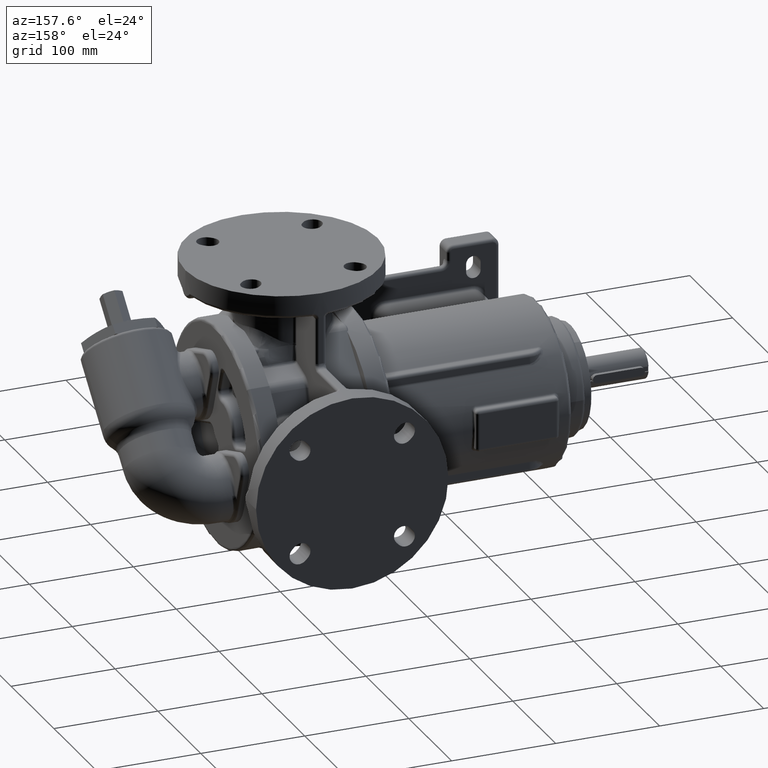
[diagram: clean part render]
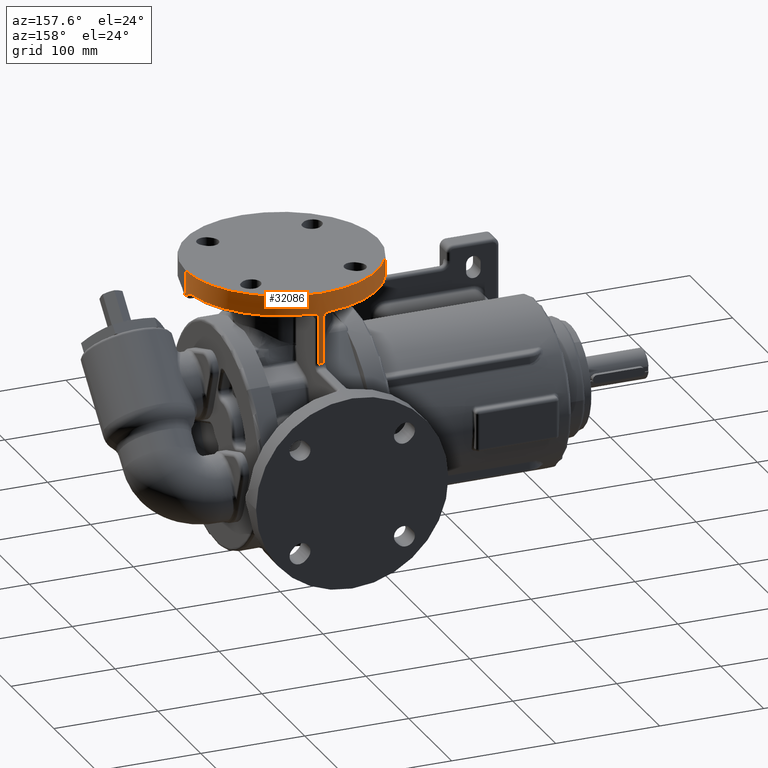
[diagram: same view with one face highlighted and labeled with its STEP entity id]
A machine part, auxiliary view. The second image highlights one B-rep face of the part: STEP entity #32086.
In plain terms, the highlighted cylindrical surface (partial cylindrical patch) has radius 92.5 mm, axis along (0, 0, 1).
Its self-contained STEP definition (entity closure, byte-faithful):
#2316=CARTESIAN_POINT('',(5.75E1,-7.402651506505E-14,1.65E2));
#2317=DIRECTION('',(0.E0,0.E0,1.E0));
#2318=DIRECTION('',(1.E0,-1.471074845106E-13,0.E0));
#2319=AXIS2_PLACEMENT_3D('',#2316,#2317,#2318);
#2321=CARTESIAN_POINT('',(5.75E1,-7.402651506505E-14,1.46E2));
#2322=DIRECTION('',(0.E0,0.E0,-1.E0));
#2323=DIRECTION('',(-1.E0,0.E0,0.E0));
#2324=AXIS2_PLACEMENT_3D('',#2321,#2322,#2323);
#2326=CARTESIAN_POINT('',(4.923184357542E1,9.212973238504E1,1.46E2));
#2327=CARTESIAN_POINT('',(4.932138539686E1,9.213776823080E1,1.459999997025E2));
#2328=CARTESIAN_POINT('',(4.950031213433E1,9.215356307626E1,1.459962484502E2));
#2329=CARTESIAN_POINT('',(4.976852970746E1,9.217645275953E1,1.459793732366E2));
#2330=CARTESIAN_POINT('',(5.003566993685E1,9.219846848584E1,1.459512698182E2));
#2331=CARTESIAN_POINT('',(5.030119568717E1,9.221957861612E1,1.459120181816E2));
#2332=CARTESIAN_POINT('',(5.056449621629E1,9.223975173901E1,1.458617230832E2));
#2333=CARTESIAN_POINT('',(5.082507543342E1,9.225897174585E1,1.458005188546E2));
#2334=CARTESIAN_POINT('',(5.108242815160E1,9.227722713870E1,1.457285448648E2));
#2335=CARTESIAN_POINT('',(5.133605484974E1,9.229451215404E1,1.456459866165E2));
#2336=CARTESIAN_POINT('',(5.158546580233E1,9.231082671202E1,1.455530351228E2));
#2337=CARTESIAN_POINT('',(5.183019868581E1,9.232617714042E1,1.454499166960E2));
#2338=CARTESIAN_POINT('',(5.206979758738E1,9.234057434134E1,1.453368614108E2));
#2339=CARTESIAN_POINT('',(5.230382844795E1,9.235403433737E1,1.452141348103E2));
#2340=CARTESIAN_POINT('',(5.253186689671E1,9.236657707816E1,1.450820049210E2));
#2341=CARTESIAN_POINT('',(5.275351377099E1,9.237822684803E1,1.449407697407E2));
#2342=CARTESIAN_POINT('',(5.296838018632E1,9.238901095317E1,1.447907297583E2));
#2343=CARTESIAN_POINT('',(5.317610211315E1,9.239896000726E1,1.446322110682E2));
#2344=CARTESIAN_POINT('',(5.337632805275E1,9.240810681532E1,1.444655423778E2));
#2345=CARTESIAN_POINT('',(5.356873064466E1,9.241648645442E1,1.442910723469E2));
#2346=CARTESIAN_POINT('',(5.375299764113E1,9.242413537163E1,1.441091529337E2));
#2347=CARTESIAN_POINT('',(5.392883873168E1,9.243109122900E1,1.439201501405E2));
#2348=CARTESIAN_POINT('',(5.409598156717E1,9.243739227451E1,1.437244343409E2));
#2349=CARTESIAN_POINT('',(5.425417208070E1,9.244307693973E1,1.435223846461E2));
#2350=CARTESIAN_POINT('',(5.440317791258E1,9.244818354271E1,1.433143848256E2));
#2351=CARTESIAN_POINT('',(5.454278070919E1,9.245274963659E1,1.431008221295E2));
#2352=CARTESIAN_POINT('',(5.467278651854E1,9.245681199214E1,1.428820900457E2));
#2353=CARTESIAN_POINT('',(5.479301027198E1,9.246040576770E1,1.426585820884E2));
#2354=CARTESIAN_POINT('',(5.490329473015E1,9.246356478240E1,1.424306978979E2));
#2355=CARTESIAN_POINT('',(5.500348649119E1,9.246632052642E1,1.421988348604E2));
#2356=CARTESIAN_POINT('',(5.509346628147E1,9.246870275922E1,1.419633883712E2));
#2357=CARTESIAN_POINT('',(5.517311320156E1,9.247073829265E1,1.417247474022E2));
#2358=CARTESIAN_POINT('',(5.524232603600E1,9.247245139220E1,1.414833435438E2));
#2359=CARTESIAN_POINT('',(5.530100745652E1,9.247386320870E1,1.412396040785E2));
#2360=CARTESIAN_POINT('',(5.534911667178E1,9.247499286586E1,1.409938666372E2));
#2361=CARTESIAN_POINT('',(5.538658850812E1,9.247585539032E1,1.407464714318E2));
#2362=CARTESIAN_POINT('',(5.541336304578E1,9.247646236428E1,1.404979861745E2));
#2363=CARTESIAN_POINT('',(5.542940378738E1,9.247682232711E1,1.402488953063E2));
#2364=CARTESIAN_POINT('',(5.543296057467E1,9.247690164487E1,1.400829722517E2));
#2365=CARTESIAN_POINT('',(5.543296089385E1,9.247690170704E1,1.4E2));
#2367=DIRECTION('',(-1.060336186665E-10,-1.449377073851E-8,-1.E0));
#2368=VECTOR('',#2367,4.352409886002E1);
#2369=CARTESIAN_POINT('',(5.543296089385E1,9.247690170704E1,1.4E2));
#2370=LINE('',#2369,#2368);
#2371=CARTESIAN_POINT('',(5.956703724102E1,9.247690153778E1,9.647590232446E1));
#2372=CARTESIAN_POINT('',(5.910779427093E1,9.248716622792E1,9.648661041011E1));
#2373=CARTESIAN_POINT('',(5.818914020849E1,9.250085554834E1,9.650089000578E1));
#2374=CARTESIAN_POINT('',(5.681085926177E1,9.250085563556E1,9.650089366936E1));
#2375=CARTESIAN_POINT('',(5.589220411740E1,9.248716605871E1,9.648661001936E1));
#2376=CARTESIAN_POINT('',(5.543296088924E1,9.247690107621E1,9.647590113998E1));
#2378=DIRECTION('',(4.285267875963E-8,3.888827711881E-9,1.E0));
#2379=VECTOR('',#2378,4.352409767554E1);
#2380=CARTESIAN_POINT('',(5.956703724102E1,9.247690153778E1,9.647590232446E1));
#2381=LINE('',#2380,#2379);
#2382=CARTESIAN_POINT('',(5.956703910615E1,9.247690170704E1,1.4E2));
#2383=CARTESIAN_POINT('',(5.956703937906E1,9.247690165878E1,1.400830060724E2));
#2384=CARTESIAN_POINT('',(5.957059867948E1,9.247682226617E1,1.402489872252E2));
#2385=CARTESIAN_POINT('',(5.958664920240E1,9.247646209032E1,1.404981358528E2));
#2386=CARTESIAN_POINT('',(5.961343431078E1,9.247585486964E1,1.407466517579E2));
#2387=CARTESIAN_POINT('',(5.965091547055E1,9.247499211941E1,1.409940486238E2));
#2388=CARTESIAN_POINT('',(5.969903115508E1,9.247386229228E1,1.412397836260E2));
#2389=CARTESIAN_POINT('',(5.975772464346E1,9.247245015761E1,1.414835352049E2));
#2390=CARTESIAN_POINT('',(5.982694738615E1,9.247073677046E1,1.417249438648E2));
#2391=CARTESIAN_POINT('',(5.990660231442E1,9.246870097588E1,1.419635781536E2));
#2392=CARTESIAN_POINT('',(5.999658824098E1,9.246631851149E1,1.421990202196E2));
#2393=CARTESIAN_POINT('',(6.009678946039E1,9.246356242103E1,1.424308800465E2));
#2394=CARTESIAN_POINT('',(6.020708051792E1,9.246040311282E1,1.426587613922E2));
#2395=CARTESIAN_POINT('',(6.032731293420E1,9.245680895406E1,1.428822641717E2));
#2396=CARTESIAN_POINT('',(6.045732414139E1,9.245274628600E1,1.431009916828E2));
#2397=CARTESIAN_POINT('',(6.059693477187E1,9.244817977125E1,1.433145479519E2));
#2398=CARTESIAN_POINT('',(6.074594555584E1,9.244307281269E1,1.435225429554E2));
#2399=CARTESIAN_POINT('',(6.090414341851E1,9.243738767527E1,1.437245859169E2));
#2400=CARTESIAN_POINT('',(6.107129067595E1,9.243108623250E1,1.439202964171E2));
#2401=CARTESIAN_POINT('',(6.124713829709E1,9.242412986387E1,1.441092919337E2));
#2402=CARTESIAN_POINT('',(6.143140932663E1,9.241648050346E1,1.442912057182E2));
#2403=CARTESIAN_POINT('',(6.162381774892E1,9.240810031231E1,1.444656682627E2));
#2404=CARTESIAN_POINT('',(6.182404740223E1,9.239895301364E1,1.446323309931E2));
#2405=CARTESIAN_POINT('',(6.203177445672E1,9.238900337126E1,1.447908420973E2));
#2406=CARTESIAN_POINT('',(6.224664433917E1,9.237821872712E1,1.449408758060E2));
#2407=CARTESIAN_POINT('',(6.246829565463E1,9.236656833800E1,1.450821033236E2));
#2408=CARTESIAN_POINT('',(6.269633712980E1,9.235402502382E1,1.452142265082E2));
#2409=CARTESIAN_POINT('',(6.293037118426E1,9.234056441854E1,1.453369451908E2));
#2410=CARTESIAN_POINT('',(6.316997173957E1,9.232616667559E1,1.454499929341E2));
#2411=CARTESIAN_POINT('',(6.341470604565E1,9.231081570231E1,1.455531031235E2));
#2412=CARTESIAN_POINT('',(6.366411837596E1,9.229450058700E1,1.456460471265E2));
#2413=CARTESIAN_POINT('',(6.391774763708E1,9.227721491450E1,1.457285981402E2));
#2414=CARTESIAN_POINT('',(6.417509885126E1,9.225895913126E1,1.458005633698E2));
#2415=CARTESIAN_POINT('',(6.443567027399E1,9.223973921267E1,1.458617583338E2));
#2416=CARTESIAN_POINT('',(6.469896289718E1,9.221956622814E1,1.459120450605E2));
#2417=CARTESIAN_POINT('',(6.496447543444E1,9.219845669759E1,1.459512877447E2));
#2418=CARTESIAN_POINT('',(6.523158634890E1,9.217644298579E1,1.459793823600E2));
#2419=CARTESIAN_POINT('',(6.549975682582E1,9.215355704239E1,1.459962502293E2));
#2420=CARTESIAN_POINT('',(6.567863963630E1,9.213776596786E1,1.459999996597E2));
#2421=CARTESIAN_POINT('',(6.576815642458E1,9.212973238504E1,1.46E2));
#2423=CARTESIAN_POINT('',(5.75E1,-7.402651506505E-14,1.46E2));
#2424=DIRECTION('',(0.E0,0.E0,-1.E0));
#2425=DIRECTION('',(8.938547486033E-2,9.959971068653E-1,0.E0));
#2426=AXIS2_PLACEMENT_3D('',#2423,#2424,#2425);
#2428=CARTESIAN_POINT('',(1.492754306265E2,1.155509988373E1,1.46E2));
#2429=CARTESIAN_POINT('',(1.492864854623E2,1.146729726061E1,1.459999997073E2));
#2430=CARTESIAN_POINT('',(1.493083192898E2,1.129185292324E1,1.459963926256E2));
#2431=CARTESIAN_POINT('',(1.493402793812E2,1.102888907717E1,1.45980171E2));
#2432=CARTESIAN_POINT('',(1.493713515180E2,1.076697851482E1,1.459531615571E2));
#2433=CARTESIAN_POINT('',(1.494014880731E2,1.050662685079E1,1.459154430478E2));
#2434=CARTESIAN_POINT('',(1.494306385047E2,1.024841405190E1,1.458671172162E2));
#2435=CARTESIAN_POINT('',(1.494587706264E2,9.992811787857E0,1.458083156707E2));
#2436=CARTESIAN_POINT('',(1.494858569373E2,9.740294035670E0,1.457391720829E2));
#2437=CARTESIAN_POINT('',(1.495118755161E2,9.491328734818E0,1.456598635598E2));
#2438=CARTESIAN_POINT('',(1.495368097463E2,9.246377630628E0,1.455705714985E2));
#2439=CARTESIAN_POINT('',(1.495606502186E2,9.005873838665E0,1.454715113672E2));
#2440=CARTESIAN_POINT('',(1.495833919235E2,8.770245124146E0,1.453628987180E2));
#2441=CARTESIAN_POINT('',(1.496050358805E2,8.539893217986E0,1.452449833978E2));
#2442=CARTESIAN_POINT('',(1.496255865753E2,8.315215856191E0,1.451180130363E2));
#2443=CARTESIAN_POINT('',(1.496450521951E2,8.096600905996E0,1.449822780276E2));
#2444=CARTESIAN_POINT('',(1.496634443393E2,7.884425833024E0,1.448380650079E2));
#2445=CARTESIAN_POINT('',(1.496807827351E2,7.678996161180E0,1.446856638233E2));
#2446=CARTESIAN_POINT('',(1.496970875363E2,7.480626034859E0,1.445253546288E2));
#2447=CARTESIAN_POINT('',(1.497123736066E2,7.289711322292E0,1.443575432634E2));
#2448=CARTESIAN_POINT('',(1.497266625862E2,7.106578399492E0,1.441825853670E2));
#2449=CARTESIAN_POINT('',(1.497355303799E2,6.990006136189E0,1.440616013975E2));
#2450=CARTESIAN_POINT('',(1.497398107110E2,6.933059930235E0,1.44E2));
#2452=CARTESIAN_POINT('',(1.497398107110E2,6.933059930235E0,1.44E2));
#2453=CARTESIAN_POINT('',(1.497457824039E2,6.853610358391E0,1.439140540076E2));
#2454=CARTESIAN_POINT('',(1.497577802806E2,6.691243333472E0,1.437450545910E2));
#2455=CARTESIAN_POINT('',(1.497758772096E2,6.437003487723E0,1.435000492740E2));
#2456=CARTESIAN_POINT('',(1.497939443197E2,6.172690164643E0,1.432642972884E2));
#2457=CARTESIAN_POINT('',(1.498118695338E2,5.898705607159E0,1.430382375679E2));
#2458=CARTESIAN_POINT('',(1.498295383403E2,5.615517063078E0,1.428223371336E2));
#2459=CARTESIAN_POINT('',(1.498468450251E2,5.323492635681E0,1.426169392854E2));
#2460=CARTESIAN_POINT('',(1.498636831780E2,5.023049245574E0,1.424224103343E2));
#2461=CARTESIAN_POINT('',(1.498799467080E2,4.714659926689E0,1.422391157695E2));
#2462=CARTESIAN_POINT('',(1.498955336902E2,4.398800032675E0,1.420673897905E2));
#2463=CARTESIAN_POINT('',(1.499103465634E2,4.075951241688E0,1.419075448049E2));
#2464=CARTESIAN_POINT('',(1.499242920664E2,3.746615360119E0,1.417598678930E2));
#2465=CARTESIAN_POINT('',(1.499372822645E2,3.411305667917E0,1.416246329646E2));
#2466=CARTESIAN_POINT('',(1.499492349243E2,3.070551793423E0,1.415020807298E2));
#2467=CARTESIAN_POINT('',(1.499600743629E2,2.724891672497E0,1.413924411647E2));
#2468=CARTESIAN_POINT('',(1.499697317886E2,2.374875363730E0,1.412959069820E2));
#2469=CARTESIAN_POINT('',(1.499781459276E2,2.021058825924E0,1.412126598340E2));
#2470=CARTESIAN_POINT('',(1.499852632977E2,1.664007760915E0,1.411428452213E2));
#2471=CARTESIAN_POINT('',(1.499910386787E2,1.304292199762E0,1.410865939197E2));
#2472=CARTESIAN_POINT('',(1.499954353489E2,9.424880278563E-1,1.410440046662E2));
#2473=CARTESIAN_POINT('',(1.499984253589E2,5.791741337508E-1,1.410151556336E2));
#2474=CARTESIAN_POINT('',(1.499999896948E2,2.149325712109E-1,1.410000992257E2));
#2475=CARTESIAN_POINT('',(1.500001184109E2,-1.496533842361E-1,
1.409988604990E2));
#2476=CARTESIAN_POINT('',(1.499988106879E2,-5.139996175452E-1,
1.410114453226E2));
#2477=CARTESIAN_POINT('',(1.499960748394E2,-8.775225959084E-1,
1.410378260536E2));
#2478=CARTESIAN_POINT('',(1.499919282682E2,-1.239639547676E0,1.410779611204E2));
#2479=CARTESIAN_POINT('',(1.499863973301E2,-1.599771527087E0,1.411317714698E2));
#2480=CARTESIAN_POINT('',(1.499795171867E2,-1.957342087963E0,1.411991668023E2));
#2481=CARTESIAN_POINT('',(1.499713315684E2,-2.311779480064E0,1.412800184353E2));
#2482=CARTESIAN_POINT('',(1.499618925140E2,-2.662516878427E0,1.413741853675E2));
#2483=CARTESIAN_POINT('',(1.499512599178E2,-3.008997146131E0,1.414814922686E2));
#2484=CARTESIAN_POINT('',(1.499395012231E2,-3.350670020483E0,1.416017473576E2));
#2485=CARTESIAN_POINT('',(1.499266908071E2,-3.686997765666E0,1.417347310940E2));
#2486=CARTESIAN_POINT('',(1.499129099537E2,-4.017443524528E0,1.418801989115E2));
#2487=CARTESIAN_POINT('',(1.498982467392E2,-4.341467862250E0,1.420378765607E2));
#2488=CARTESIAN_POINT('',(1.498827930117E2,-4.658583693947E0,1.422074764031E2));
#2489=CARTESIAN_POINT('',(1.498666434004E2,-4.968346026015E0,1.423887217718E2));
#2490=CARTESIAN_POINT('',(1.498499036205E2,-5.270194410218E0,1.425812261575E2));
#2491=CARTESIAN_POINT('',(1.498326799318E2,-5.563644531729E0,1.427846257633E2));
#2492=CARTESIAN_POINT('',(1.498209601832E2,-5.753177122885E0,1.429270539750E2));
#2493=CARTESIAN_POINT('',(1.498150518316E2,-5.846469475732E0,1.43E2));
#2495=DIRECTION('',(0.E0,-2.063450045473E-13,1.E0));
#2496=VECTOR('',#2495,2.2E1);
#2497=CARTESIAN_POINT('',(1.5E2,-7.402651506505E-14,1.43E2));
#2498=LINE('',#2497,#2496);
#2576=CARTESIAN_POINT('',(5.75E1,-7.402651506505E-14,1.43E2));
#2577=DIRECTION('',(0.E0,0.E0,1.E0));
#2578=DIRECTION('',(9.980005603415E-1,-6.320507541332E-2,0.E0));
#2579=AXIS2_PLACEMENT_3D('',#2576,#2577,#2578);
#2727=DIRECTION('',(0.E0,0.E0,1.E0));
#2728=VECTOR('',#2727,1.9E1);
#2729=CARTESIAN_POINT('',(-3.5E1,-6.024587177189E-14,1.46E2));
#2730=LINE('',#2729,#2728);
#8523=CARTESIAN_POINT('',(5.956703724102E1,9.247690153778E1,9.647590232446E1));
#21906=CARTESIAN_POINT('',(-3.5E1,-7.402651506505E-14,1.65E2));
#21907=CARTESIAN_POINT('',(1.5E2,-1.368225588054E-11,1.65E2));
#21908=VERTEX_POINT('',#21906);
#21909=VERTEX_POINT('',#21907);
#22029=VERTEX_POINT('',#2326);
#22030=VERTEX_POINT('',#2365);
#22033=CARTESIAN_POINT('',(5.543296088924E1,9.247690107621E1,9.647590113998E1));
#22034=VERTEX_POINT('',#22033);
#22070=VERTEX_POINT('',#8523);
#22073=CARTESIAN_POINT('',(5.956703910615E1,9.247690170704E1,1.4E2));
#22074=VERTEX_POINT('',#22073);
#22076=VERTEX_POINT('',#2421);
#22079=CARTESIAN_POINT('',(1.492754306265E2,1.155509988373E1,1.46E2));
#22080=VERTEX_POINT('',#22079);
#22082=VERTEX_POINT('',#2450);
#22084=VERTEX_POINT('',#2493);
#22090=CARTESIAN_POINT('',(-3.5E1,-7.047380138625E-14,1.46E2));
#22092=VERTEX_POINT('',#22090);
#22093=CARTESIAN_POINT('',(1.5E2,-8.734919136055E-14,1.43E2));
#22094=VERTEX_POINT('',#22093);
#32054=CARTESIAN_POINT('',(5.75E1,-7.402651506505E-14,1.43E2));
#32055=DIRECTION('',(0.E0,0.E0,1.E0));
#32056=DIRECTION('',(1.E0,0.E0,0.E0));
#32057=AXIS2_PLACEMENT_3D('',#32054,#32055,#32056);
#32058=CYLINDRICAL_SURFACE('',#32057,9.25E1);
#32060=ORIENTED_EDGE('',*,*,#32059,.T.);
#32062=ORIENTED_EDGE('',*,*,#32061,.F.);
#32063=ORIENTED_EDGE('',*,*,#32042,.T.);
#32065=ORIENTED_EDGE('',*,*,#32064,.T.);
#32067=ORIENTED_EDGE('',*,*,#32066,.T.);
#32069=ORIENTED_EDGE('',*,*,#32068,.F.);
#32071=ORIENTED_EDGE('',*,*,#32070,.T.);
#32073=ORIENTED_EDGE('',*,*,#32072,.T.);
#32075=ORIENTED_EDGE('',*,*,#32074,.T.);
#32077=ORIENTED_EDGE('',*,*,#32076,.T.);
#32079=ORIENTED_EDGE('',*,*,#32078,.T.);
#32081=ORIENTED_EDGE('',*,*,#32080,.T.);
#32083=ORIENTED_EDGE('',*,*,#32082,.T.);
#32084=EDGE_LOOP('',(#32060,#32062,#32063,#32065,#32067,#32069,#32071,#32073,
#32075,#32077,#32079,#32081,#32083));
#32085=FACE_OUTER_BOUND('',#32084,.F.);
#32086=ADVANCED_FACE('',(#32085),#32058,.T.);
#2320=CIRCLE('',#2319,9.25E1);
#2325=CIRCLE('',#2324,9.25E1);
#2366=B_SPLINE_CURVE_WITH_KNOTS('',3,(#2326,#2327,#2328,#2329,#2330,#2331,#2332,
#2333,#2334,#2335,#2336,#2337,#2338,#2339,#2340,#2341,#2342,#2343,#2344,#2345,
#2346,#2347,#2348,#2349,#2350,#2351,#2352,#2353,#2354,#2355,#2356,#2357,#2358,
#2359,#2360,#2361,#2362,#2363,#2364,#2365),.UNSPECIFIED.,.F.,.F.,(4,1,1,1,1,1,1,
1,1,1,1,1,1,1,1,1,1,1,1,1,1,1,1,1,1,1,1,1,1,1,1,1,1,1,1,1,1,4),(0.E0,
2.702702702703E-2,5.405405405405E-2,8.108108108108E-2,1.081081081081E-1,
1.351351351351E-1,1.621621621622E-1,1.891891891892E-1,2.162162162162E-1,
2.432432432432E-1,2.702702702703E-1,2.972972972973E-1,3.243243243243E-1,
3.513513513514E-1,3.783783783784E-1,4.054054054054E-1,4.324324324324E-1,
4.594594594595E-1,4.864864864865E-1,5.135135135135E-1,5.405405405405E-1,
5.675675675676E-1,5.945945945946E-1,6.216216216216E-1,6.486486486486E-1,
6.756756756757E-1,7.027027027027E-1,7.297297297297E-1,7.567567567568E-1,
7.837837837838E-1,8.108108108108E-1,8.378378378378E-1,8.648648648649E-1,
8.918918918919E-1,9.189189189189E-1,9.459459459459E-1,9.729729729730E-1,1.E0),
.UNSPECIFIED.);
#2377=B_SPLINE_CURVE_WITH_KNOTS('',3,(#2371,#2372,#2373,#2374,#2375,#2376),
.UNSPECIFIED.,.F.,.F.,(4,1,1,4),(0.E0,3.333333333333E-1,6.666666666667E-1,1.E0),
.UNSPECIFIED.);
#2422=B_SPLINE_CURVE_WITH_KNOTS('',3,(#2382,#2383,#2384,#2385,#2386,#2387,#2388,
#2389,#2390,#2391,#2392,#2393,#2394,#2395,#2396,#2397,#2398,#2399,#2400,#2401,
#2402,#2403,#2404,#2405,#2406,#2407,#2408,#2409,#2410,#2411,#2412,#2413,#2414,
#2415,#2416,#2417,#2418,#2419,#2420,#2421),.UNSPECIFIED.,.F.,.F.,(4,1,1,1,1,1,1,
1,1,1,1,1,1,1,1,1,1,1,1,1,1,1,1,1,1,1,1,1,1,1,1,1,1,1,1,1,1,4),(0.E0,
2.702702702703E-2,5.405405405405E-2,8.108108108108E-2,1.081081081081E-1,
1.351351351351E-1,1.621621621622E-1,1.891891891892E-1,2.162162162162E-1,
2.432432432432E-1,2.702702702703E-1,2.972972972973E-1,3.243243243243E-1,
3.513513513514E-1,3.783783783784E-1,4.054054054054E-1,4.324324324324E-1,
4.594594594595E-1,4.864864864865E-1,5.135135135135E-1,5.405405405405E-1,
5.675675675676E-1,5.945945945946E-1,6.216216216216E-1,6.486486486486E-1,
6.756756756757E-1,7.027027027027E-1,7.297297297297E-1,7.567567567568E-1,
7.837837837838E-1,8.108108108108E-1,8.378378378378E-1,8.648648648649E-1,
8.918918918919E-1,9.189189189189E-1,9.459459459459E-1,9.729729729730E-1,1.E0),
.UNSPECIFIED.);
#2427=CIRCLE('',#2426,9.25E1);
#2451=B_SPLINE_CURVE_WITH_KNOTS('',3,(#2428,#2429,#2430,#2431,#2432,#2433,#2434,
#2435,#2436,#2437,#2438,#2439,#2440,#2441,#2442,#2443,#2444,#2445,#2446,#2447,
#2448,#2449,#2450),.UNSPECIFIED.,.F.,.F.,(4,1,1,1,1,1,1,1,1,1,1,1,1,1,1,1,1,1,1,
1,4),(0.E0,5.E-2,1.E-1,1.5E-1,2.E-1,2.5E-1,3.E-1,3.5E-1,4.E-1,4.5E-1,5.E-1,
5.5E-1,6.E-1,6.5E-1,7.E-1,7.5E-1,8.E-1,8.5E-1,9.E-1,9.5E-1,1.E0),.UNSPECIFIED.);
#2494=B_SPLINE_CURVE_WITH_KNOTS('',3,(#2452,#2453,#2454,#2455,#2456,#2457,#2458,
#2459,#2460,#2461,#2462,#2463,#2464,#2465,#2466,#2467,#2468,#2469,#2470,#2471,
#2472,#2473,#2474,#2475,#2476,#2477,#2478,#2479,#2480,#2481,#2482,#2483,#2484,
#2485,#2486,#2487,#2488,#2489,#2490,#2491,#2492,#2493),.UNSPECIFIED.,.F.,.F.,(4,
1,1,1,1,1,1,1,1,1,1,1,1,1,1,1,1,1,1,1,1,1,1,1,1,1,1,1,1,1,1,1,1,1,1,1,1,1,1,4),(
0.E0,2.564102564103E-2,5.128205128205E-2,7.692307692308E-2,1.025641025641E-1,
1.282051282051E-1,1.538461538462E-1,1.794871794872E-1,2.051282051282E-1,
2.307692307692E-1,2.564102564103E-1,2.820512820513E-1,3.076923076923E-1,
3.333333333333E-1,3.589743589744E-1,3.846153846154E-1,4.102564102564E-1,
4.358974358974E-1,4.615384615385E-1,4.871794871795E-1,5.128205128205E-1,
5.384615384615E-1,5.641025641026E-1,5.897435897436E-1,6.153846153846E-1,
6.410256410256E-1,6.666666666667E-1,6.923076923077E-1,7.179487179487E-1,
7.435897435897E-1,7.692307692308E-1,7.948717948718E-1,8.205128205128E-1,
8.461538461538E-1,8.717948717949E-1,8.974358974359E-1,9.230769230769E-1,
9.487179487179E-1,9.743589743590E-1,1.E0),.UNSPECIFIED.);
#2580=CIRCLE('',#2579,9.25E1);
#32042=EDGE_CURVE('',#22092,#22029,#2325,.T.);
#32059=EDGE_CURVE('',#21909,#21908,#2320,.T.);
#32061=EDGE_CURVE('',#22092,#21908,#2730,.T.);
#32064=EDGE_CURVE('',#22029,#22030,#2366,.T.);
#32066=EDGE_CURVE('',#22030,#22034,#2370,.T.);
#32068=EDGE_CURVE('',#22070,#22034,#2377,.T.);
#32070=EDGE_CURVE('',#22070,#22074,#2381,.T.);
#32072=EDGE_CURVE('',#22074,#22076,#2422,.T.);
#32074=EDGE_CURVE('',#22076,#22080,#2427,.T.);
#32076=EDGE_CURVE('',#22080,#22082,#2451,.T.);
#32078=EDGE_CURVE('',#22082,#22084,#2494,.T.);
#32080=EDGE_CURVE('',#22084,#22094,#2580,.T.);
#32082=EDGE_CURVE('',#22094,#21909,#2498,.T.);